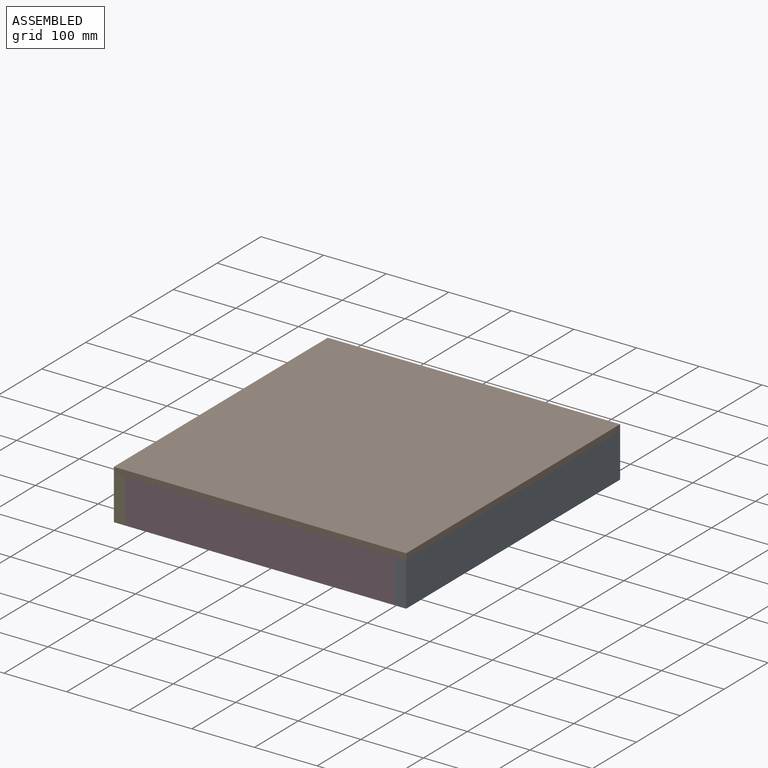
[diagram: assembled view]
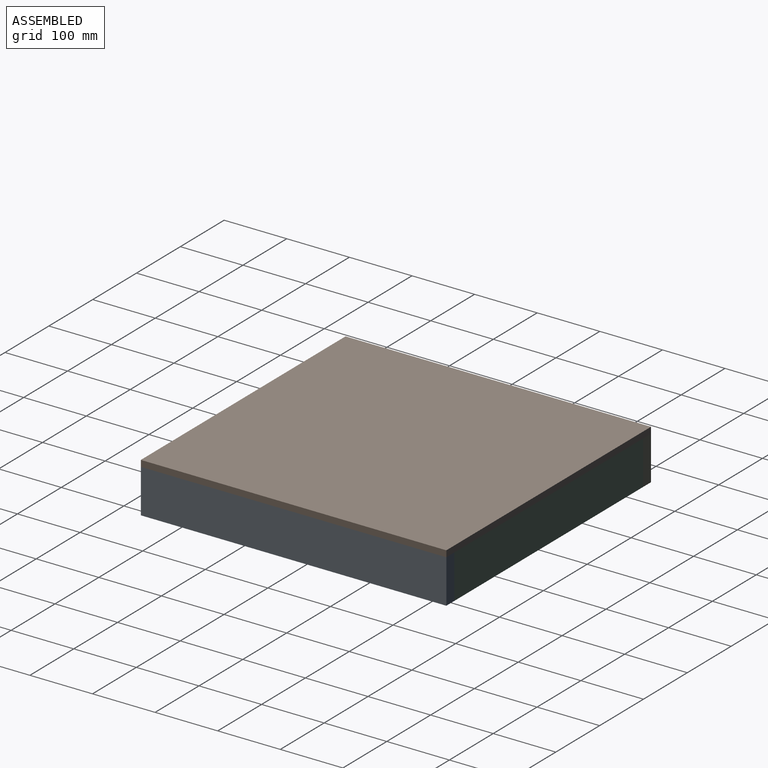
[diagram: assembled view, second angle]
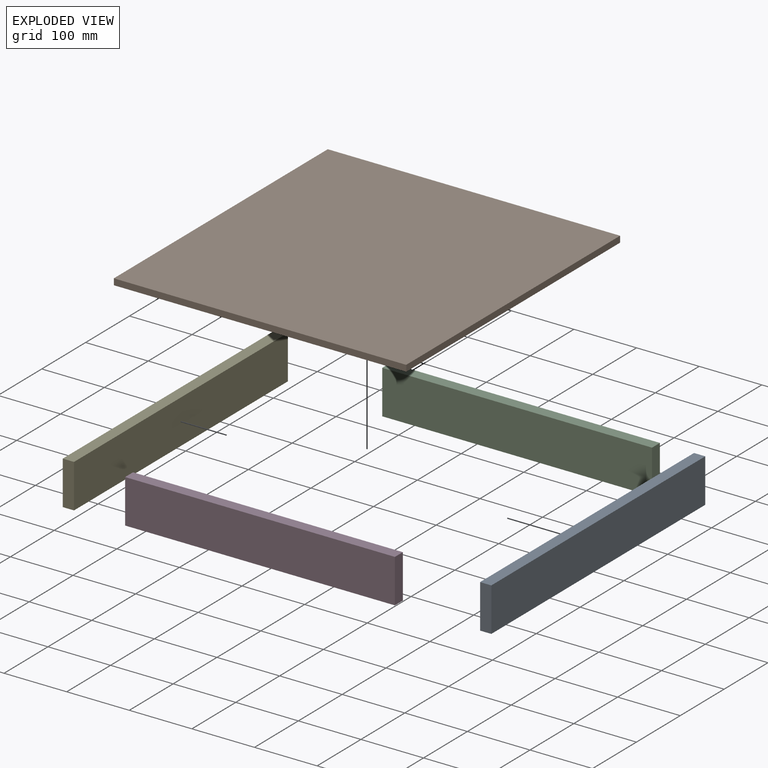
[diagram: exploded view]
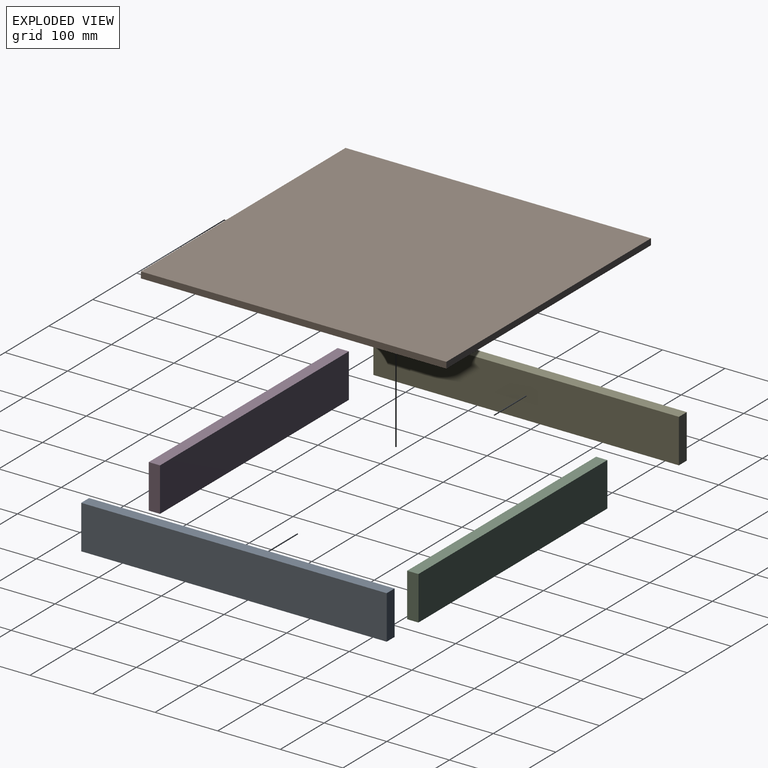
[diagram: exploded view, second angle]
ASSEMBLY  parts=5 mates=4
PART A: 6 faces, bbox 18x488x70 mm
  f0: plane 488x18mm, normal (0,0,1), area 8784mm2, adj f1,f3,f4,f5
  f1: plane 70x18mm, normal (0,-1,0), area 1260mm2, adj f0,f2,f4,f5
  f2: plane 488x18mm, normal (0,0,-1), area 8784mm2, adj f1,f3,f4,f5
  f3: plane 70x18mm, normal (0,1,0), area 1260mm2, adj f0,f2,f4,f5
  f4: plane 488x70mm, normal (1,0,0), area 34160mm2, adj f0,f1,f2,f3
  f5: plane 488x70mm, normal (-1,0,0), area 34160mm2, adj f0,f1,f2,f3
PART B: 6 faces, bbox 467x488x10 mm
  f0: plane 467x10mm, normal (0,1,0), area 4670mm2, adj f1,f3,f4,f5
  f1: plane 488x10mm, normal (-1,0,0), area 4880mm2, adj f0,f2,f4,f5
  f2: plane 467x10mm, normal (0,-1,0), area 4670mm2, adj f1,f3,f4,f5
  f3: plane 488x10mm, normal (1,0,0), area 4880mm2, adj f0,f2,f4,f5
  f4: plane 488x467mm, normal (0,0,1), area 227896mm2, adj f0,f1,f2,f3
  f5: plane 488x467mm, normal (0,0,-1), area 227896mm2, adj f0,f1,f2,f3
PART C: 6 faces, bbox 431x18x70 mm
  f0: plane 431x18mm, normal (0,0,1), area 7758mm2, adj f1,f3,f4,f5
  f1: plane 70x18mm, normal (-1,0,0), area 1260mm2, adj f0,f2,f4,f5
  f2: plane 431x18mm, normal (0,0,-1), area 7758mm2, adj f1,f3,f4,f5
  f3: plane 70x18mm, normal (1,0,0), area 1260mm2, adj f0,f2,f4,f5
  f4: plane 431x70mm, normal (0,-1,0), area 30170mm2, adj f0,f1,f2,f3
  f5: plane 431x70mm, normal (0,1,0), area 30170mm2, adj f0,f1,f2,f3
PART D: same geometry as C
PART E: same geometry as A
PLACE A t=(220.03,-8.56,-48.98)mm
PLACE B t=(-4.47,-8.56,-8.98)mm
PLACE C t=(-4.47,226.44,-48.98)mm
PLACE D t=(-4.47,-243.56,-48.98)mm
PLACE E t=(-228.97,-8.56,-48.98)mm
MATE fastened E.f4 <-> D.f1  axis (1,0,0) through (-219.97,-252.56,-13.98)mm
MATE fastened E.f0 <-> B.f5  axis (0,0,1) through (-237.97,-252.56,-13.98)mm
MATE fastened E.f4 <-> C.f1  axis (1,0,0) through (-219.97,235.44,-13.98)mm
MATE fastened A.f5 <-> D.f3  axis (-1,0,0) through (211.03,-252.56,-13.98)mm
